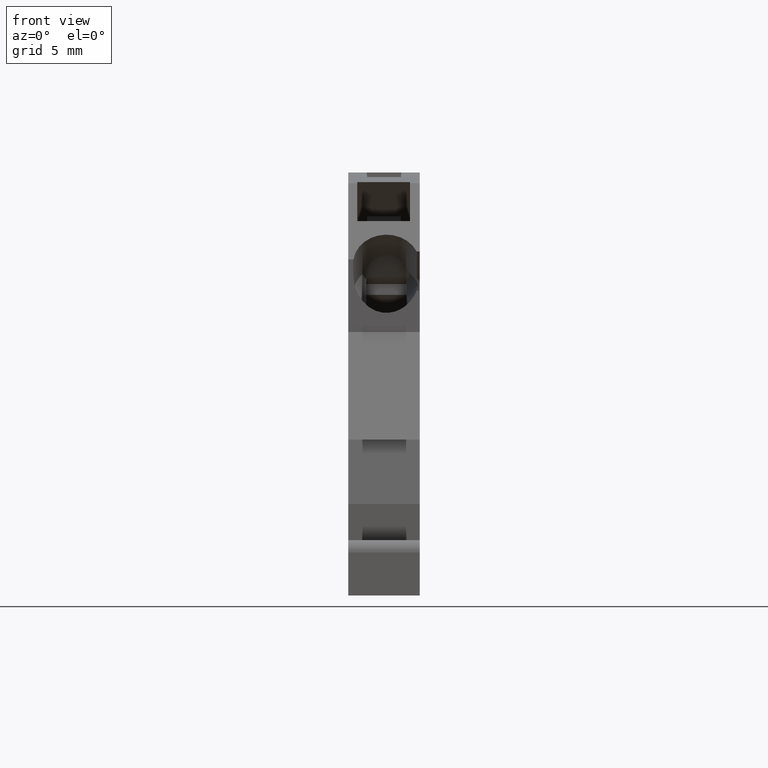
[diagram: clean part render]
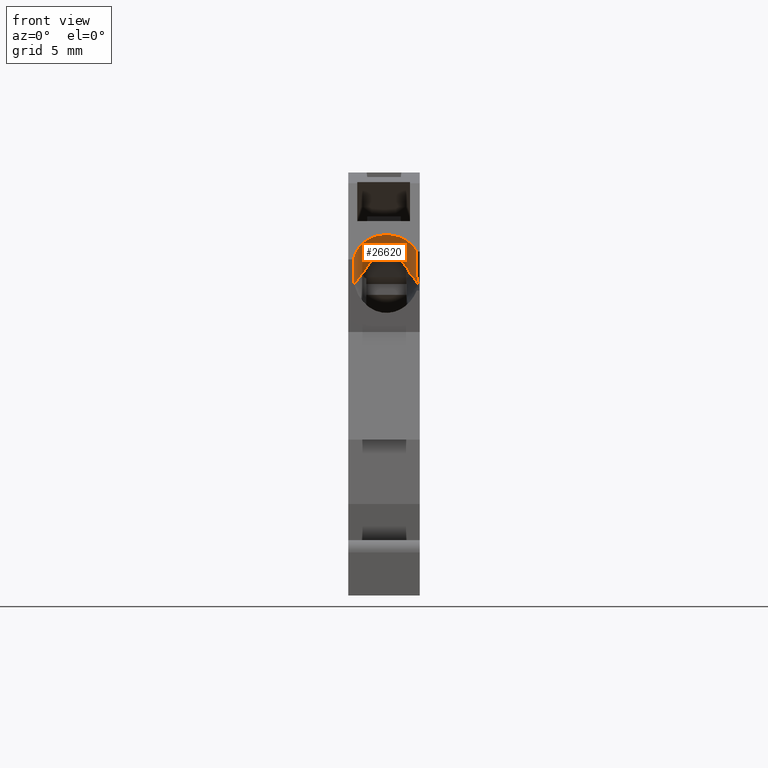
[diagram: same view with one face highlighted and labeled with its STEP entity id]
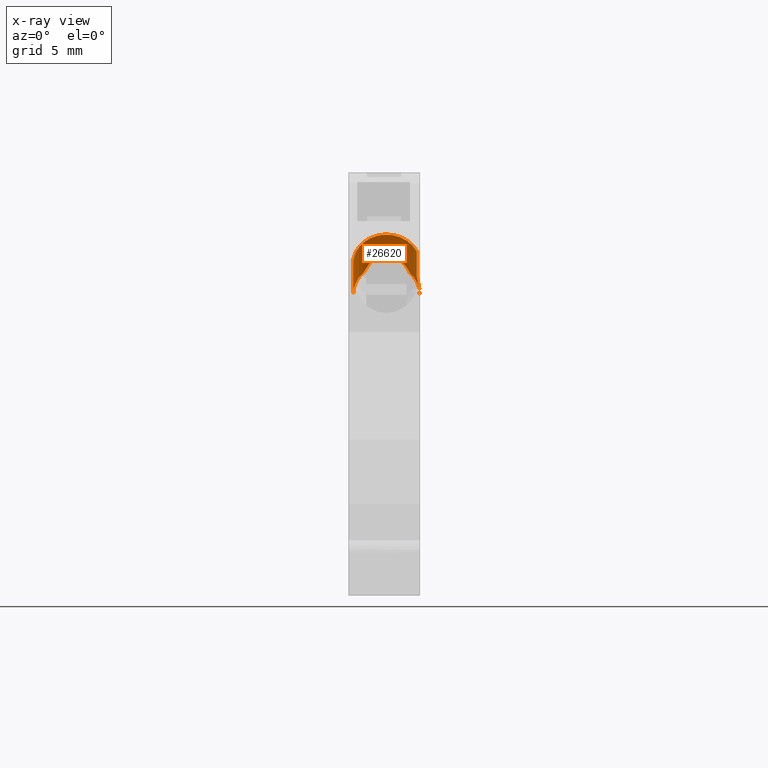
[diagram: x-ray of the same camera — body ghosted, the highlighted face saturated]
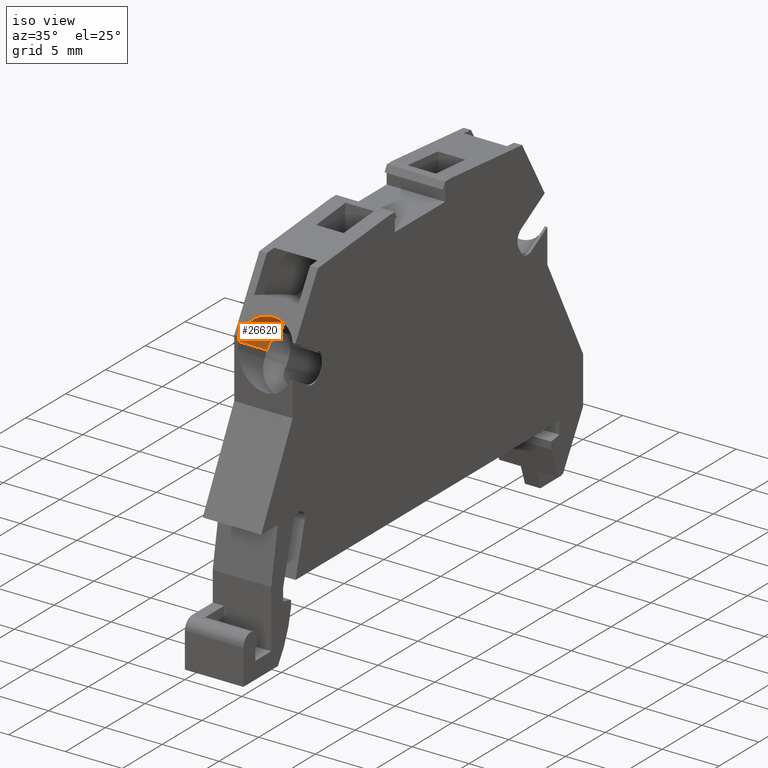
[diagram: same view with one face highlighted and labeled with its STEP entity id]
A machine part, front view. The second image highlights one B-rep face of the part: STEP entity #26620.
The next image is the same camera in x-ray: the body ghosted, the highlighted face saturated — about 0% of this face is hidden behind the body in this view.
A second angle (iso view) of the same face is appended — the face is thin or edge-on in the first view.
In plain terms, the highlighted cylindrical surface (edge-blend (fillet) strip) has radius 2.4 mm, axis along (0, -0.866, 0.5).
Its self-contained STEP definition (entity closure, byte-faithful):
#2090=CARTESIAN_POINT('',(70.7808557905968,133.621306641667,
9.22499999999941));
#2100=VERTEX_POINT('',#2090);
#14330=CARTESIAN_POINT('',(68.6895046171243,137.243633130582,
11.624999999997));
#14340=DIRECTION('',(-1.9417800700694E-13,1.,-9.71062622912877E-15));
#14350=DIRECTION('',(1.,1.94122495855709E-13,1.05357811484479E-12));
#14360=AXIS2_PLACEMENT_3D('',#14330,#14340,#14350);
#14370=ELLIPSE('',#14360,2.77128129211124,2.4);
#14380=CARTESIAN_POINT('',(68.2949093109948,137.243633130582,
14.0005464441439));
#14390=VERTEX_POINT('',#14380);
#14400=CARTESIAN_POINT('',(68.6895046171175,137.243633130582,
14.024999999997));
#14410=VERTEX_POINT('',#14400);
#14420=EDGE_CURVE('',#14390,#14410,#14370,.T.);
#24720=CARTESIAN_POINT('',(67.7248303868105,136.914497910239,
9.44325757706946));
#24730=VERTEX_POINT('',#24720);
#24760=CARTESIAN_POINT('',(68.5908557905933,137.41449791024,
11.6249999999969));
#24770=DIRECTION('',(-0.500000000000727,0.866025403784019,
-5.3519870642406E-13));
#24780=DIRECTION('',(-0.866025403784019,-0.500000000000727,
-2.9782580784224E-13));
#24790=AXIS2_PLACEMENT_3D('',#24760,#24770,#24780);
#24800=CIRCLE('',#24790,2.4);
#24810=EDGE_CURVE('',#24730,#14390,#24800,.T.);
#25070=CARTESIAN_POINT('',(69.4148303868119,133.987332045451,
9.44325757707126));
#25080=VERTEX_POINT('',#25070);
#25110=CARTESIAN_POINT('',(68.3748303868104,135.788664885321,
9.44325757707015));
#25120=DIRECTION('',(-0.500000000000727,0.866025403784019,
-5.3519870642406E-13));
#25130=VECTOR('',#25120,1.);
#25140=LINE('',#25110,#25130);
#25150=EDGE_CURVE('',#25080,#24730,#25140,.T.);
#25270=CARTESIAN_POINT('',(70.2808557905986,134.48733204545,
4.37499999999871));
#25280=DIRECTION('',(-5.25524068706296E-13,3.14582771914244E-13,1.));
#25290=DIRECTION('',(0.866025403784544,-0.499999999999817,
6.12408579756932E-13));
#25300=AXIS2_PLACEMENT_3D('',#25270,#25280,#25290);
#25310=CYLINDRICAL_SURFACE('',#25300,1.);
#25330=CARTESIAN_POINT('',(69.2408557905933,136.288664885323,
11.6249999999976));
#25340=DIRECTION('',(-0.500000000000727,0.866025403784019,
-5.3519870642406E-13));
#25350=DIRECTION('',(-0.866025403784019,-0.500000000000727,
-2.9782580784224E-13));
#25360=AXIS2_PLACEMENT_3D('',#25330,#25340,#25350);
#25370=CYLINDRICAL_SURFACE('',#25360,2.4);
#25380=CARTESIAN_POINT('',(69.4148303868119,133.987332045451,
9.44325757707127));
#25390=CARTESIAN_POINT('',(69.4230871791601,133.973030861596,
9.44325757707128));
#25400=CARTESIAN_POINT('',(69.4316596030973,133.958996588148,
9.44307098177116));
#25410=CARTESIAN_POINT('',(69.4406104486322,133.945125659185,
9.44269743277465));
#25420=CARTESIAN_POINT('',(69.4495579956857,133.931259841806,
9.4423240214349));
#25430=CARTESIAN_POINT('',(69.4588656218701,133.91758990413,
9.44176348036733));
#25440=CARTESIAN_POINT('',(69.4685181231053,133.90414467078,
9.44101774502914));
#25450=CARTESIAN_POINT('',(69.4781705793267,133.890699500132,
9.44027201316864));
#25460=CARTESIAN_POINT('',(69.488167707056,133.87747936574,
9.43934109746339));
#25470=CARTESIAN_POINT('',(69.4984901516277,133.86451264389,
9.43823031831616));
#25480=CARTESIAN_POINT('',(69.5088125715375,133.851545953019,
9.43711954182274));
#25490=CARTESIAN_POINT('',(69.5194600746555,133.838832987879,
9.43582893445688));
#25500=CARTESIAN_POINT('',(69.5304096983048,133.826400382899,
9.43436714899086));
#25510=CARTESIAN_POINT('',(69.5413593180709,133.813967782327,
9.43290536404326));
#25520=CARTESIAN_POINT('',(69.5526108083172,133.801815823323,
9.43127245220016));
#25530=CARTESIAN_POINT('',(69.5641383162711,133.789968394264,
9.42948012468942));
#25540=CARTESIAN_POINT('',(69.5756658417147,133.77812094723,
9.42768779445936));
#25550=CARTESIAN_POINT('',(69.5874691307367,133.766578271591,
9.42573611358444));
#25560=CARTESIAN_POINT('',(69.5995202903068,133.755360778225,
9.4236393974565));
#25570=CARTESIAN_POINT('',(69.6115714897982,133.744143247698,
9.42154267438289));
#25580=CARTESIAN_POINT('',(69.6238703118768,133.733251096869,
9.41930098953735));
#25590=CARTESIAN_POINT('',(69.6363877780029,133.722700774351,
9.41693067381121));
#25600=CARTESIAN_POINT('',(69.6489060044208,133.712149811023,
9.41456021411571));
#25610=CARTESIAN_POINT('',(69.6616395452078,133.701943257181,
9.41206181410101));
#25620=CARTESIAN_POINT('',(69.6745682734908,133.692086519464,
9.40945135556757));
#25630=CARTESIAN_POINT('',(69.7004429052251,133.672359949848,
9.40422697063721));
#25640=CARTESIAN_POINT('',(69.7273284238698,133.653862832188,
9.3985062115521));
#25650=CARTESIAN_POINT('',(69.7550678233837,133.636716378105,
9.39241197504939));
#25660=CARTESIAN_POINT('',(69.7828068046048,133.61957018258,
9.38631783044392));
#25670=CARTESIAN_POINT('',(69.8113951989073,133.603777749691,
9.37985174670158));
#25680=CARTESIAN_POINT('',(69.8406484390378,133.589435900212,
9.37315561738698));
#25690=CARTESIAN_POINT('',(69.8699016659748,133.575094057202,
9.36645949109239));
#25700=CARTESIAN_POINT('',(69.89981518475,133.562205006005,
9.35953498014236));
#25710=CARTESIAN_POINT('',(69.9301899070633,133.550831411107,
9.35253107912975));
#25720=CARTESIAN_POINT('',(69.9605650554881,133.539457656654,
9.34552707986296));
#25730=CARTESIAN_POINT('',(69.9913968031531,133.529600780604,
9.33844529691497));
#25740=CARTESIAN_POINT('',(70.0224860986381,133.521285927361,
9.33142960091244));
#25750=CARTESIAN_POINT('',(70.053580224552,133.512969782217,
9.32441281486203));
#25760=CARTESIAN_POINT('',(70.0852355472178,133.506115063994,
9.31739317155652));
#25770=CARTESIAN_POINT('',(70.1172642182302,133.500803892048,
9.31051235523464));
#25780=CARTESIAN_POINT('',(70.149292467023,133.495492790118,
9.30363162961947));
#25790=CARTESIAN_POINT('',(70.1816891377473,133.491726412664,
9.29689133297468));
#25800=CARTESIAN_POINT('',(70.2142448960097,133.489553017432,
9.29042875712156));
#25810=CARTESIAN_POINT('',(70.2468006904706,133.487379619784,
9.28396617408275));
#25820=CARTESIAN_POINT('',(70.2795099052047,133.486799645128,
9.2777828889904));
#25830=CARTESIAN_POINT('',(70.3121572659659,133.48782205668,
9.2720009140457));
#25840=CARTESIAN_POINT('',(70.3448051715928,133.488844485295,
9.26621884260313));
#25850=CARTESIAN_POINT('',(70.3773851401053,133.491468788206,
9.26083940591173));
#25860=CARTESIAN_POINT('',(70.4096949119107,133.495666536916,
9.25596048007133));
#25870=CARTESIAN_POINT('',(70.4258464614558,133.497764977805,
9.25352152095664));
#25880=CARTESIAN_POINT('',(70.4419885522651,133.500263704705,
9.25119850995623));
#25890=CARTESIAN_POINT('',(70.4580903509034,133.503163406125,
9.24900470596924));
#25900=CARTESIAN_POINT('',(70.4741920500208,133.506063089624,
9.24681091554157));
#25910=CARTESIAN_POINT('',(70.4902528792846,133.5093636689,
9.24474643042607));
#25920=CARTESIAN_POINT('',(70.5062405932312,133.513062221049,
9.24282293610519));
#25930=CARTESIAN_POINT('',(70.5222283026109,133.516760772141,
9.24089944233375));
#25940=CARTESIAN_POINT('',(70.538142604403,133.520857233077,
9.23911698607688));
#25950=CARTESIAN_POINT('',(70.5539516371215,133.525345216742,
9.2374852140344));
#25960=CARTESIAN_POINT('',(70.5697606922583,133.529833206771,
9.23585343967797));
#25970=CARTESIAN_POINT('',(70.585464181774,133.534712628659,
9.23437238557768));
#25980=CARTESIAN_POINT('',(70.6010315917342,133.539973899677,
9.23304942516799));
#25990=CARTESIAN_POINT('',(70.6321394937213,133.550487344338,
9.23040579190708));
#26000=CARTESIAN_POINT('',(70.6628119879891,133.562562894411,
9.22838552178438));
#26010=CARTESIAN_POINT('',(70.6928741458471,133.576156499831,
9.22703323551278));
#26020=CARTESIAN_POINT('',(70.70790131483,133.582951534529,
9.22635726825812));
#26030=CARTESIAN_POINT('',(70.7227674730934,133.590121876999,
9.22584829975573));
#26040=CARTESIAN_POINT('',(70.7374410261141,133.597652371239,
9.22550898575328));
#26050=CARTESIAN_POINT('',(70.7521154359912,133.605183305219,
9.22516965193672));
#26060=CARTESIAN_POINT('',(70.7665933886296,133.613072240052,
9.22499999999923));
#26070=CARTESIAN_POINT('',(70.7808557905968,133.621306641667,
9.22499999999924));
#26080=B_SPLINE_CURVE_WITH_KNOTS('',3,(#25380,#25390,#25400,#25410,
#25420,#25430,#25440,#25450,#25460,#25470,#25480,#25490,#25500,#25510,
#25520,#25530,#25540,#25550,#25560,#25570,#25580,#25590,#25600,#25610,
#25620,#25630,#25640,#25650,#25660,#25670,#25680,#25690,#25700,#25710,
#25720,#25730,#25740,#25750,#25760,#25770,#25780,#25790,#25800,#25810,
#25820,#25830,#25840,#25850,#25860,#25870,#25880,#25890,#25900,#25910,
#25920,#25930,#25940,#25950,#25960,#25970,#25980,#25990,#26000,#26010,
#26020,#26030,#26040,#26050,#26060,#26070),.UNSPECIFIED.,.F.,.F.,(4,3,3,
3,3,3,3,3,3,3,3,3,3,3,3,3,3,3,3,3,3,3,3,4),(0.,0.0494662256422541,
0.0990818254386577,0.148855281442448,0.198724382787591,0.248618088987114
,0.298460416175946,0.348174050399171,0.397686167730599,0.496905673065944
,0.596596126712779,0.696300589675863,0.795518326819371,0.894752104531337
,0.994466267983993,1.09415293218637,1.19335299793332,1.24282250249796,
1.29237237495127,1.34193306799179,1.39143821989981,1.49038071074992,
1.53989017707473,1.58933923803346),.UNSPECIFIED.);
#26090=SURFACE_CURVE('',#26080,(#25310,#25370),.CURVE_3D.);
#26100=EDGE_CURVE('',#25080,#2100,#26090,.T.);
#26230=ORIENTED_EDGE('',*,*,#24810,.T.);
#26240=ORIENTED_EDGE('',*,*,#25150,.T.);
#26250=ORIENTED_EDGE('',*,*,#26100,.F.);
#26260=CARTESIAN_POINT('',(70.7808557905955,133.621306641668,
11.6249999999992));
#26270=DIRECTION('',(-0.500000000000727,0.866025403784019,
-5.3519870642406E-13));
#26280=DIRECTION('',(-0.866025403784019,-0.500000000000727,
-2.9782580784224E-13));
#26290=AXIS2_PLACEMENT_3D('',#26260,#26270,#26280);
#26300=CIRCLE('',#26290,2.4);
#26310=CARTESIAN_POINT('',(69.3184842152252,132.77700601897,
9.91953061180702));
#26320=VERTEX_POINT('',#26310);
#26330=EDGE_CURVE('',#2100,#26320,#26300,.T.);
#26340=ORIENTED_EDGE('',*,*,#26330,.F.);
#26350=CARTESIAN_POINT('',(72.5914643189632,130.485240677924,
11.6250000000012));
#26360=DIRECTION('',(-0.573576436350791,-0.819152044289171,
-4.37371018334183E-14));
#26370=DIRECTION('',(0.819152044289171,-0.573576436350791,
6.10921380455851E-13));
#26380=AXIS2_PLACEMENT_3D('',#26350,#26360,#26370);
#26390=ELLIPSE('',#26380,5.67888379957242,2.4);
#26400=CARTESIAN_POINT('',(69.3184842152235,132.777006018971,
13.3304693881905));
#26410=VERTEX_POINT('',#26400);
#26420=EDGE_CURVE('',#26410,#26320,#26390,.T.);
#26430=ORIENTED_EDGE('',*,*,#26420,.T.);
#26440=CARTESIAN_POINT('',(70.7808557905955,133.621306641668,
11.6249999999992));
#26450=DIRECTION('',(-0.500000000000727,0.866025403784019,
-5.3519870642406E-13));
#26460=DIRECTION('',(-0.866025403784019,-0.500000000000727,
-2.9782580784224E-13));
#26470=AXIS2_PLACEMENT_3D('',#26440,#26450,#26460);
#26480=CIRCLE('',#26470,2.4);
#26490=CARTESIAN_POINT('',(70.7808557905943,133.621306641669,
14.0249999999992));
#26500=VERTEX_POINT('',#26490);
#26510=EDGE_CURVE('',#26410,#26500,#26480,.T.);
#26520=ORIENTED_EDGE('',*,*,#26510,.F.);
#26530=CARTESIAN_POINT('',(69.2408557905921,136.288664885324,
14.0249999999976));
#26540=DIRECTION('',(0.500000000000727,-0.866025403784019,
5.3519870642406E-13));
#26550=VECTOR('',#26540,1.);
#26560=LINE('',#26530,#26550);
#26570=EDGE_CURVE('',#14410,#26500,#26560,.T.);
#26580=ORIENTED_EDGE('',*,*,#26570,.T.);
#26590=ORIENTED_EDGE('',*,*,#14420,.T.);
#26600=EDGE_LOOP('',(#26590,#26580,#26520,#26430,#26340,#26250,#26240,
#26230));
#26610=FACE_OUTER_BOUND('',#26600,.T.);
#26620=ADVANCED_FACE('',(#26610),#25370,.F.);